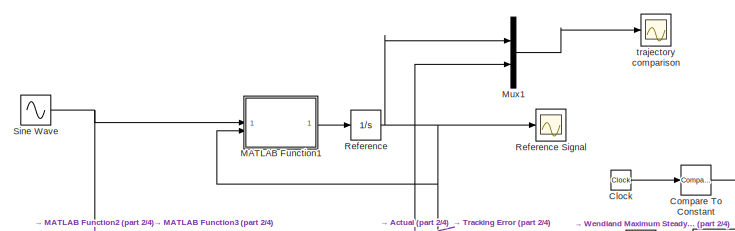
[diagram: root canvas - part 1/4, top center region]
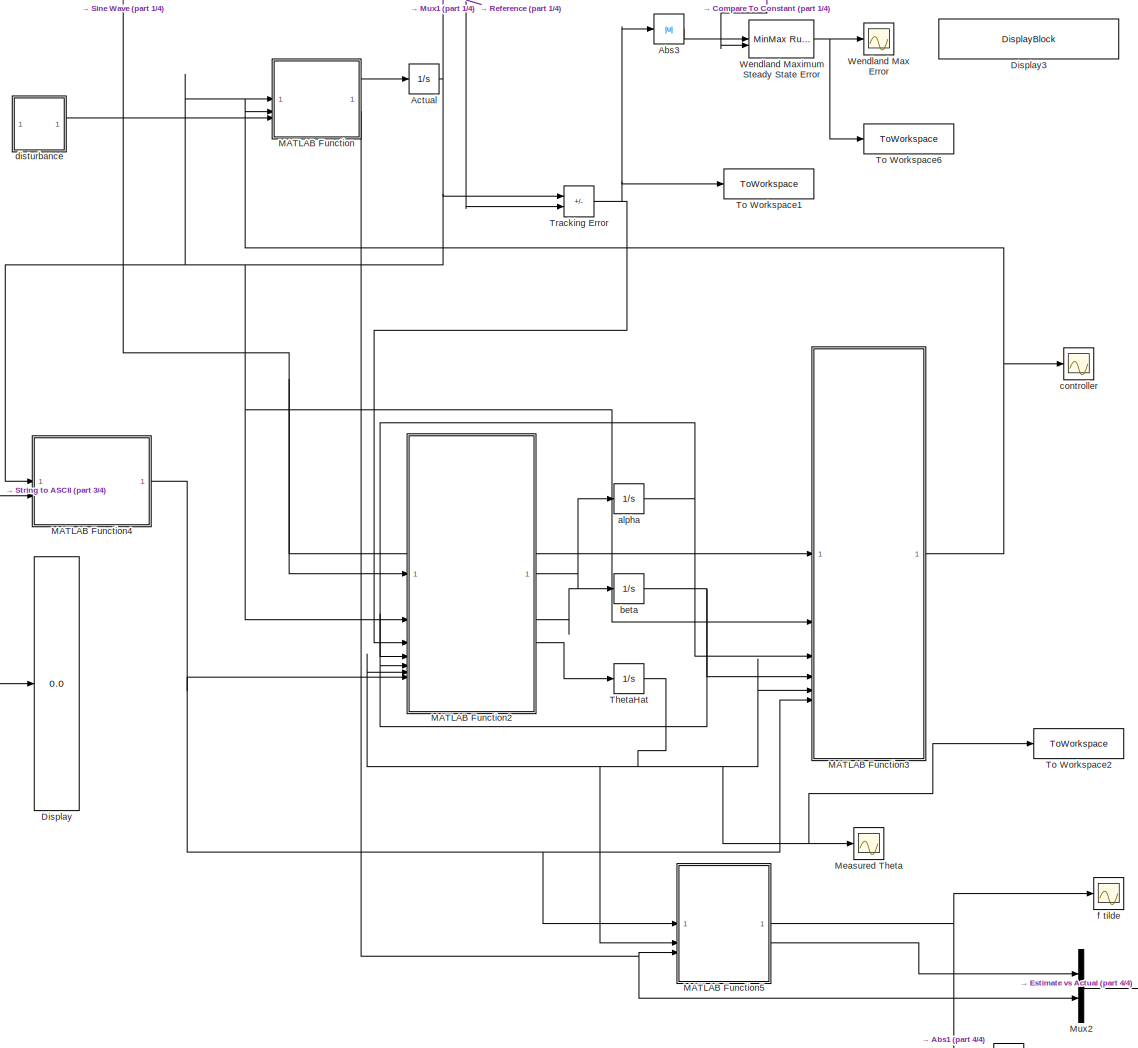
[diagram: root canvas - part 2/4, center side, full height]
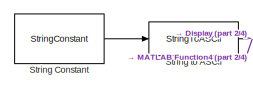
[diagram: root canvas - part 3/4, middle left region]
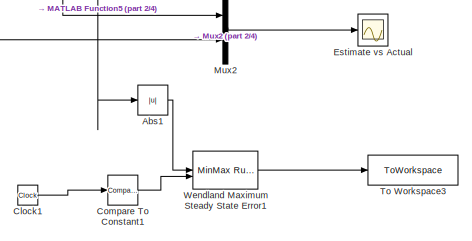
[diagram: root canvas - part 4/4, bottom right region]
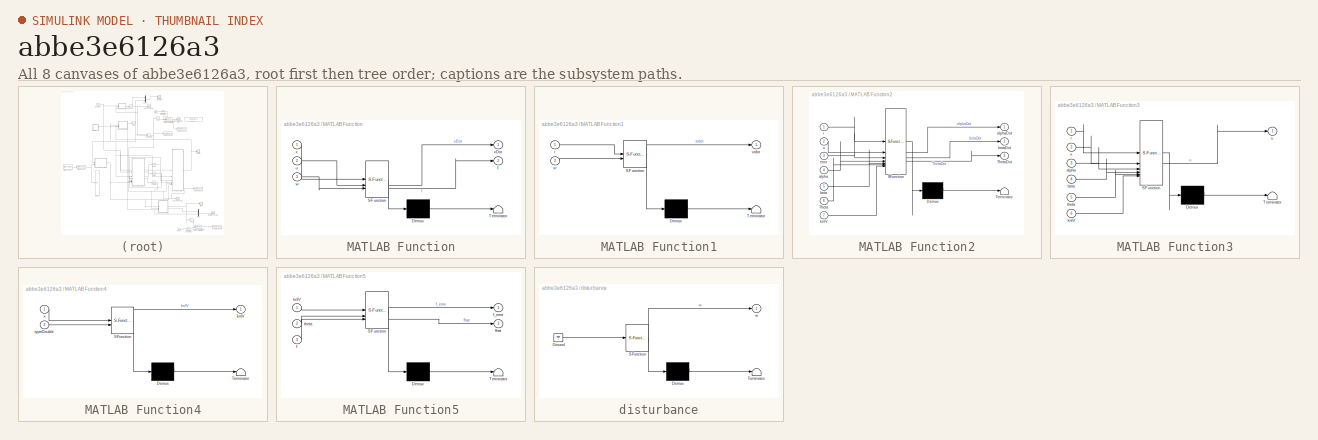
[diagram: thumbnail index - all 8 canvases of the model, root first then tree order]
MODEL slx_abbe3e6126a3
KIND model
CONFIG AbsTol = 1e-4
CONFIG EnableMultiTasking = off
CONFIG FixedStep = 1e-5
CONFIG MaxStep = auto
CONFIG MinStep = auto
CONFIG RelTol = 1e-3
CONFIG SampleTimeConstraint = Unconstrained
CONFIG SolverName = ode45
CONFIG StartTime = 0.0
CONFIG StopTime = 20
BLOCK [Sum]  Tracking Error
  IconShape = rectangular
  Inputs = +-
BLOCK [Abs] Abs1
  SaturateOnIntegerOverflow = off
BLOCK [Abs] Abs3
  SaturateOnIntegerOverflow = off
BLOCK [Integrator] Actual
  InitialCondition = x0
BLOCK [Clock] Clock
  DisplayTime = on
BLOCK [Clock] Clock1
  DisplayTime = on
BLOCK [Reference] Compare To Constant  REF=simulink/Logic and Bit
Operations/Compare
To Constant
  SourceBlock = simulink/Logic and Bit\nOperations/Compare\nTo Constant
  SourceType = Compare To Constant
BLOCK [Reference] Compare To Constant1  REF=simulink/Logic and Bit
Operations/Compare
To Constant
  SourceBlock = simulink/Logic and Bit\nOperations/Compare\nTo Constant
  SourceType = Compare To Constant
BLOCK [Display] Display
  Decimation = 1
BLOCK [DisplayBlock] Display3
  LabelPosition = Hide
  Transparency = 1
BLOCK [Scope] Estimate vs Actual
  Floating = off
  NumInputPorts = 1
  ScopeSpecificationString = Simulink.scopes.TimeScopeBlockCfg('CurrentConfiguration', extmgr.ConfigurationSet(extmgr.Configuration('Core','General UI',true),extmgr.Configuration('Core','Source UI',true),extmgr.Configuration('Sources','WiredSimulink',true,'DataLoggingVariableName','ScopeData1'),extmgr.Configuration('Visuals','Time Domain',true,'SerializedDisplays',{struct('MinYLimReal','-3.00000','MaxYLimReal','3.00000','YLab...<+1482ch>
BLOCK [SubSystem] MATLAB Function
  ErrorFcn = Stateflow.Translate.translate
  PermitHierarchicalResolution = ExplicitOnly
  SFBlockType = MATLAB Function
  TreatAsAtomicUnit = on
BLOCK [Demux] MATLAB Function/ Demux 
  Outputs = 1
BLOCK [S-Function] MATLAB Function/ SFunction 
  EnableBusSupport = on
  FunctionName = sf_sfun
  Parameters = A,B,Dim,fMag,interps,targetCoefs,targetNu,targetScale
  PortCounts = [3 3]
  SFcnIsStateOwnerBlock = off
  SFunctionDeploymentMode = off
  Tag = Stateflow S-Function 2
BLOCK [Terminator] MATLAB Function/ Terminator 
BLOCK [Outport] MATLAB Function/f
  Port = 2
BLOCK [Inport] MATLAB Function/u
  Port = 2
BLOCK [Inport] MATLAB Function/w
  Port = 3
BLOCK [Inport] MATLAB Function/x
BLOCK [Outport] MATLAB Function/xDot
BLOCK [SubSystem] MATLAB Function1
  ErrorFcn = Stateflow.Translate.translate
  PermitHierarchicalResolution = ExplicitOnly
  SFBlockType = MATLAB Function
  TreatAsAtomicUnit = on
BLOCK [Demux] MATLAB Function1/ Demux 
  Outputs = 1
BLOCK [S-Function] MATLAB Function1/ SFunction 
  EnableBusSupport = on
  FunctionName = sf_sfun
  Parameters = Ar,Br
  PortCounts = [2 2]
  SFcnIsStateOwnerBlock = off
  SFunctionDeploymentMode = off
  Tag = Stateflow S-Function 1
BLOCK [Terminator] MATLAB Function1/ Terminator 
BLOCK [Inport] MATLAB Function1/r
BLOCK [Inport] MATLAB Function1/xr
  Port = 2
BLOCK [Outport] MATLAB Function1/xrdot
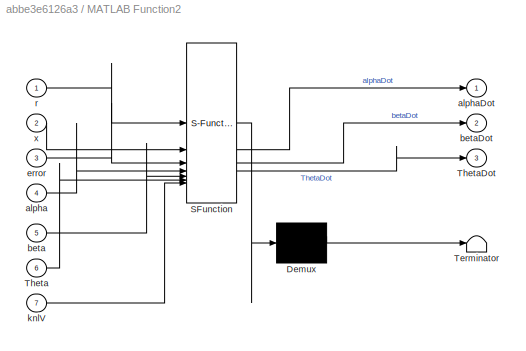
BLOCK [SubSystem] MATLAB Function2
  ErrorFcn = Stateflow.Translate.translate
  PermitHierarchicalResolution = ExplicitOnly
  SFBlockType = MATLAB Function
  TreatAsAtomicUnit = on
BLOCK [Demux] MATLAB Function2/ Demux 
  Outputs = 1
BLOCK [S-Function] MATLAB Function2/ SFunction 
  EnableBusSupport = on
  FunctionName = sf_sfun
  Parameters = K,epsilon,ga,gb,gf,sigma
  PortCounts = [7 4]
  SFcnIsStateOwnerBlock = off
  SFunctionDeploymentMode = off
  Tag = Stateflow S-Function 3
BLOCK [Terminator] MATLAB Function2/ Terminator 
BLOCK [Inport] MATLAB Function2/Theta
  Port = 6
BLOCK [Outport] MATLAB Function2/ThetaDot
  Port = 3
BLOCK [Inport] MATLAB Function2/alpha
  Port = 4
BLOCK [Outport] MATLAB Function2/alphaDot
BLOCK [Inport] MATLAB Function2/beta
  Port = 5
BLOCK [Outport] MATLAB Function2/betaDot
  Port = 2
BLOCK [Inport] MATLAB Function2/error
  Port = 3
BLOCK [Inport] MATLAB Function2/knlV
  Port = 7
BLOCK [Inport] MATLAB Function2/r
BLOCK [Inport] MATLAB Function2/x
  Port = 2
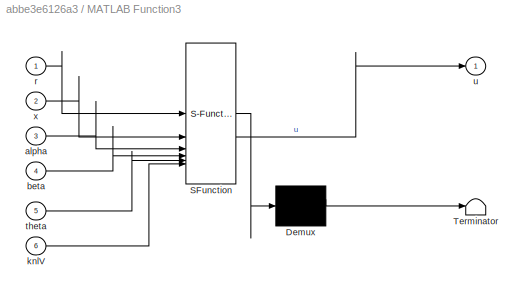
BLOCK [SubSystem] MATLAB Function3
  ErrorFcn = Stateflow.Translate.translate
  PermitHierarchicalResolution = ExplicitOnly
  SFBlockType = MATLAB Function
  TreatAsAtomicUnit = on
BLOCK [Demux] MATLAB Function3/ Demux 
  Outputs = 1
BLOCK [S-Function] MATLAB Function3/ SFunction 
  EnableBusSupport = on
  FunctionName = sf_sfun
  Parameters = B,epsilon
  PortCounts = [6 2]
  SFcnIsStateOwnerBlock = off
  SFunctionDeploymentMode = off
  Tag = Stateflow S-Function 4
BLOCK [Terminator] MATLAB Function3/ Terminator 
BLOCK [Inport] MATLAB Function3/alpha
  Port = 3
BLOCK [Inport] MATLAB Function3/beta
  Port = 4
BLOCK [Inport] MATLAB Function3/knlV
  Port = 6
BLOCK [Inport] MATLAB Function3/r
BLOCK [Inport] MATLAB Function3/theta
  Port = 5
BLOCK [Outport] MATLAB Function3/u
BLOCK [Inport] MATLAB Function3/x
  Port = 2
BLOCK [SubSystem] MATLAB Function4
  ErrorFcn = Stateflow.Translate.translate
  PermitHierarchicalResolution = ExplicitOnly
  SFBlockType = MATLAB Function
  TreatAsAtomicUnit = on
BLOCK [Demux] MATLAB Function4/ Demux 
  Outputs = 1
BLOCK [S-Function] MATLAB Function4/ SFunction 
  EnableBusSupport = on
  FunctionName = sf_sfun
  Parameters = centers,par,scale
  PortCounts = [2 2]
  SFcnIsStateOwnerBlock = off
  SFunctionDeploymentMode = off
  Tag = Stateflow S-Function 5
BLOCK [Terminator] MATLAB Function4/ Terminator 
BLOCK [Outport] MATLAB Function4/knlV
BLOCK [Inport] MATLAB Function4/typeDouble
  Port = 2
BLOCK [Inport] MATLAB Function4/x
BLOCK [SubSystem] MATLAB Function5
  ErrorFcn = Stateflow.Translate.translate
  PermitHierarchicalResolution = ExplicitOnly
  SFBlockType = MATLAB Function
  TreatAsAtomicUnit = on
BLOCK [Demux] MATLAB Function5/ Demux 
  Outputs = 1
BLOCK [S-Function] MATLAB Function5/ SFunction 
  EnableBusSupport = on
  FunctionName = sf_sfun
  PortCounts = [3 3]
  SFcnIsStateOwnerBlock = off
  SFunctionDeploymentMode = off
  Tag = Stateflow S-Function 6
BLOCK [Terminator] MATLAB Function5/ Terminator 
BLOCK [Inport] MATLAB Function5/f
  Port = 3
BLOCK [Outport] MATLAB Function5/f_error
BLOCK [Outport] MATLAB Function5/fhat
  Port = 2
BLOCK [Inport] MATLAB Function5/knlV
BLOCK [Inport] MATLAB Function5/theta
  Port = 2
BLOCK [Scope] Measured Theta
  Floating = off
  NumInputPorts = 1
  ScopeSpecificationString = Simulink.scopes.TimeScopeBlockCfg('CurrentConfiguration', extmgr.ConfigurationSet(extmgr.Configuration('Core','General UI',true),extmgr.Configuration('Core','Source UI',true),extmgr.Configuration('Sources','WiredSimulink',true,'DataLoggingVariableName','ScopeData2'),extmgr.Configuration('Visuals','Time Domain',true,'SerializedDisplays',{struct('MinYLimReal','-8.85611','MaxYLimReal','6.52429','YLab...<+4581ch>
BLOCK [Mux] Mux1
  DisplayOption = bar
  Inputs = 2
BLOCK [Mux] Mux2
  DisplayOption = bar
  Inputs = 2
BLOCK [Integrator] Reference
  InitialCondition = xr0
BLOCK [Scope] Reference Signal
  Floating = off
  NumInputPorts = 1
  ScopeSpecificationString = Simulink.scopes.TimeScopeBlockCfg('CurrentConfiguration', extmgr.ConfigurationSet(extmgr.Configuration('Core','General UI',true,'FigureColor',[1 1 1]),extmgr.Configuration('Core','Source UI',true),extmgr.Configuration('Sources','WiredSimulink',true,'DataLoggingVariableName','ScopeData1'),extmgr.Configuration('Visuals','Time Domain',true,'SerializedDisplays',{struct('MinYLimReal','-12.43782','MaxYL...<+1950ch>
BLOCK [Sin] Sine Wave
  Amplitude = norm_fs*SNU
  Frequency = 2*pi
  SampleTime = 0
BLOCK [StringConstant] String Constant
  String = type
BLOCK [StringToASCII] String to ASCII
BLOCK [Integrator] ThetaHat
BLOCK [ToWorkspace] To Workspace1
  FixptAsFi = on
  MaxDataPoints = inf
  SampleTime = -1
  SaveFormat = Timeseries
  VariableName = trackingError
BLOCK [ToWorkspace] To Workspace2
  FixptAsFi = on
  MaxDataPoints = inf
  SampleTime = -1
  SaveFormat = Timeseries
  VariableName = theta
BLOCK [ToWorkspace] To Workspace3
  FixptAsFi = on
  MaxDataPoints = inf
  SampleTime = -1
  SaveFormat = Timeseries
  VariableName = approxError
BLOCK [ToWorkspace] To Workspace6
  FixptAsFi = on
  MaxDataPoints = inf
  SampleTime = -1
  SaveFormat = Timeseries
  VariableName = ssErrorWendland
BLOCK [Scope] Wendland Max Error
  Floating = off
  NumInputPorts = 1
  ScopeSpecificationString = Simulink.scopes.TimeScopeBlockCfg('CurrentConfiguration', extmgr.ConfigurationSet(extmgr.Configuration('Core','General UI',true),extmgr.Configuration('Core','Source UI',true),extmgr.Configuration('Sources','WiredSimulink',true,'DataLoggingVariableName','ScopeData4'),extmgr.Configuration('Visuals','Time Domain',true,'SerializedDisplays',{struct('MinYLimReal','-1.53696','MaxYLimReal','2.36845','YLab...<+1506ch>
BLOCK [Reference] Wendland Maximum Steady State Error  REF=simulink/Math
Operations/MinMax
Running
Resettable
  SourceBlock = simulink/Math\nOperations/MinMax\nRunning\nResettable
  SourceType = MinMax Running Resettable
BLOCK [Reference] Wendland Maximum Steady State Error1  REF=simulink/Math
Operations/MinMax
Running
Resettable
  SourceBlock = simulink/Math\nOperations/MinMax\nRunning\nResettable
  SourceType = MinMax Running Resettable
BLOCK [Integrator] alpha
  InitialCondition = alpha0
BLOCK [Integrator] beta
  InitialCondition = beta0
BLOCK [Scope] controller
  Floating = off
  NumInputPorts = 1
  ScopeSpecificationString = Simulink.scopes.TimeScopeBlockCfg('CurrentConfiguration', extmgr.ConfigurationSet(extmgr.Configuration('Core','General UI',true),extmgr.Configuration('Core','Source UI',true),extmgr.Configuration('Sources','WiredSimulink',true,'DataLoggingVariableName','ScopeData1'),extmgr.Configuration('Visuals','Time Domain',true,'SerializedDisplays',{struct('MinYLimReal','-14.17115','MaxYLimReal','13.35791','YL...<+1413ch>
BLOCK [SubSystem] disturbance
  ErrorFcn = Stateflow.Translate.translate
  PermitHierarchicalResolution = ExplicitOnly
  SFBlockType = MATLAB Function
  TreatAsAtomicUnit = on
BLOCK [Demux] disturbance/ Demux 
  Outputs = 1
BLOCK [Ground] disturbance/ Ground 
BLOCK [S-Function] disturbance/ SFunction 
  EnableBusSupport = on
  FunctionName = sf_sfun
  Parameters = delta
  PortCounts = [1 2]
  SFcnIsStateOwnerBlock = off
  SFunctionDeploymentMode = off
  Tag = Stateflow S-Function 7
BLOCK [Terminator] disturbance/ Terminator 
BLOCK [Outport] disturbance/w
BLOCK [Scope] f tilde
  Floating = off
  NumInputPorts = 1
  ScopeSpecificationString = Simulink.scopes.TimeScopeBlockCfg('CurrentConfiguration', extmgr.ConfigurationSet(extmgr.Configuration('Core','General UI',true),extmgr.Configuration('Core','Source UI',true),extmgr.Configuration('Sources','WiredSimulink',true,'DataLoggingVariableName','ScopeData3'),extmgr.Configuration('Visuals','Time Domain',true,'SerializedDisplays',{struct('MinYLimReal','-0.1998','MaxYLimReal','0.15864','YLabe...<+1431ch>
BLOCK [Scope] trajectory comparison
  Floating = off
  NumInputPorts = 1
  ScopeSpecificationString = Simulink.scopes.TimeScopeBlockCfg('CurrentConfiguration', extmgr.ConfigurationSet(extmgr.Configuration('Core','General UI',true,'FigureColor',[1 1 1]),extmgr.Configuration('Core','Source UI',true),extmgr.Configuration('Sources','WiredSimulink',true,'DataLoggingVariableName','ScopeData1'),extmgr.Configuration('Visuals','Time Domain',true,'SerializedDisplays',{struct('MinYLimReal','-33.72544','MaxYL...<+1991ch>
NET  Tracking Error:1 -> Abs3:1, MATLAB Function2:3, To Workspace1:1
LINE Abs1:1 -> Wendland Maximum Steady State Error1:1
LINE Abs3:1 -> Wendland Maximum Steady State Error:1
NET Actual:1 ->  Tracking Error:1, MATLAB Function2:2, MATLAB Function3:2, MATLAB Function4:1, MATLAB Function:1, Mux1:2
LINE Clock1:1 -> Compare To Constant1:1
LINE Clock:1 -> Compare To Constant:1
LINE Compare To Constant1:1 -> Wendland Maximum Steady State Error1:2
LINE Compare To Constant:1 -> Wendland Maximum Steady State Error:2
LINE MATLAB Function1:1 -> Reference:1
LINE MATLAB Function2:1 -> alpha:1
LINE MATLAB Function2:2 -> beta:1
LINE MATLAB Function2:3 -> ThetaHat:1
NET MATLAB Function3:1 -> MATLAB Function:2, controller:1
NET MATLAB Function4:1 -> MATLAB Function2:7, MATLAB Function3:6, MATLAB Function5:1
NET MATLAB Function5:1 -> Abs1:1, f tilde:1
LINE MATLAB Function5:2 -> Mux2:1
LINE MATLAB Function:1 -> Actual:1
NET MATLAB Function:2 -> MATLAB Function5:3, Mux2:2
LINE Mux1:1 -> trajectory comparison:1
LINE Mux2:1 -> Estimate vs Actual:1
NET Reference:1 ->  Tracking Error:2, MATLAB Function1:2, Mux1:1, Reference Signal:1
NET Sine Wave:1 -> MATLAB Function1:1, MATLAB Function2:1, MATLAB Function3:1
LINE String Constant:1 -> String to ASCII:1
NET String to ASCII:1 -> Display:1, MATLAB Function4:2
NET ThetaHat:1 -> MATLAB Function2:6, MATLAB Function3:5, MATLAB Function5:2, Measured Theta:1, To Workspace2:1
LINE Wendland Maximum Steady State Error1:1 -> To Workspace3:1
NET Wendland Maximum Steady State Error:1 -> To Workspace6:1, Wendland Max Error:1
NET alpha:1 -> MATLAB Function2:4, MATLAB Function3:3
NET beta:1 -> MATLAB Function2:5, MATLAB Function3:4
LINE disturbance:1 -> MATLAB Function:3
note: NET lines group one-source signal fan-out (src -> all destinations, sorted); 1:1 wires keep LINE
CHART MATLAB Function3 states=1 transitions=1
  STATE_LABEL 'eML_blk_kernel()'
  STATE_LABEL "SCRIPT:\nfunction u = controller(r, x,alpha,beta, theta,knlV,epsilon,B)\n% P= 1;\n% if B*P*x >= 0\n%     vN = epsilon;\n% else\n%     vN = -epsilon;\n% end\nu = alpha*x+beta*r-theta'*knlV;\nend\n"
CHART MATLAB Function4 states=1 transitions=1
  STATE_LABEL 'eML_blk_kernel()'
  STATE_LABEL 'SCRIPT:\nfunction knlV  = Knl_Eval(x,centers, typeDouble, scale, par)\n\ntype = char(typeDouble(typeDouble~=0));\n\n\nknlV = real(kermat(centers,x,type,par,scale));\n'
CHART MATLAB Function5 states=1 transitions=1
  STATE_LABEL 'eML_blk_kernel()'
  STATE_LABEL "SCRIPT:\nfunction [f_error,fhat]  = functionError(knlV,theta, f)\nfhat = theta'*knlV;\nf_error = f-fhat;\n\n\n\n\n"
CHART disturbance states=1 transitions=1
  STATE_LABEL 'eML_blk_kernel()'
  STATE_LABEL 'SCRIPT:\nfunction w   = plant(delta)\n% \nw = 0.5*rand;\n\n'
CHART MATLAB Function1 states=1 transitions=1
  STATE_LABEL 'eML_blk_kernel()'
  STATE_LABEL 'SCRIPT:\nfunction xrdot = reference(r,xr,Ar, Br)\n\nxrdot = Ar*xr+Br*r;\n'
CHART MATLAB Function states=1 transitions=1
  STATE_LABEL 'eML_blk_kernel()'
  STATE_LABEL "SCRIPT:\nfunction [xDot,f]  = plant(x,u,A, B,fMag,w,interps, targetCoefs,targetScale,targetNu, Dim)\n% \n% Ip = length(interps);\n% targetKnlV = zeros(Ip,1);\n% \n% \n% for kk = 1:Ip\n%     targetKnlV(kk) = real(kernel('matern',interps(kk),x,targetScale,targetNu-Dim/2));\n% \n% end\n\ntargetKnlV = real(kermat(interps,x,'ms',targetNu-Dim/2,targetScale));\nf = targetCoefs'*targetKnlV;\n% f = fMag*tanh(x);\n\nxDot =...<+17ch>"
CHART MATLAB Function2 states=1 transitions=1
  STATE_LABEL 'eML_blk_kernel()'
  STATE_LABEL 'SCRIPT:\nfunction [alphaDot, betaDot, ThetaDot] = evo_law(ga, gb, gf, sigma, r, x, error, alpha, beta, Theta, knlV, K,epsilon)\n\n\n%% Standard RKHS Sigma Mod\n% alphaDot=-ga*x*error-sigma*alpha;\n% betaDot=-gb*r*error-sigma*beta;\n% ThetaDot=gf*invK*knlV*error-sigma*Theta;\n\n%% Standard RKHS Deadzone\nif abs(error) > epsilon\n    alphaDot=-ga*x*error;\n    betaDot=-gb*r*error;\n    ThetaDot=gf*K\\knlV*error;\n...<+293ch>'
CHART  states=0 transitions=0
CHART  states=0 transitions=0
CHART  states=0 transitions=0
CHART  states=0 transitions=0
CHART  states=0 transitions=0
CHART  states=0 transitions=0
CHART  states=0 transitions=0
